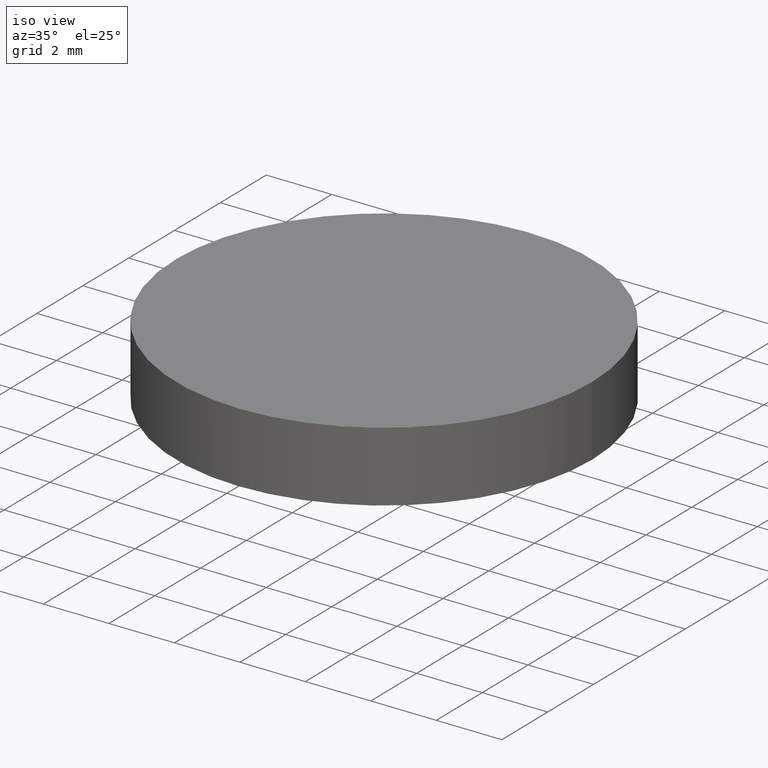
[diagram: clean part render]
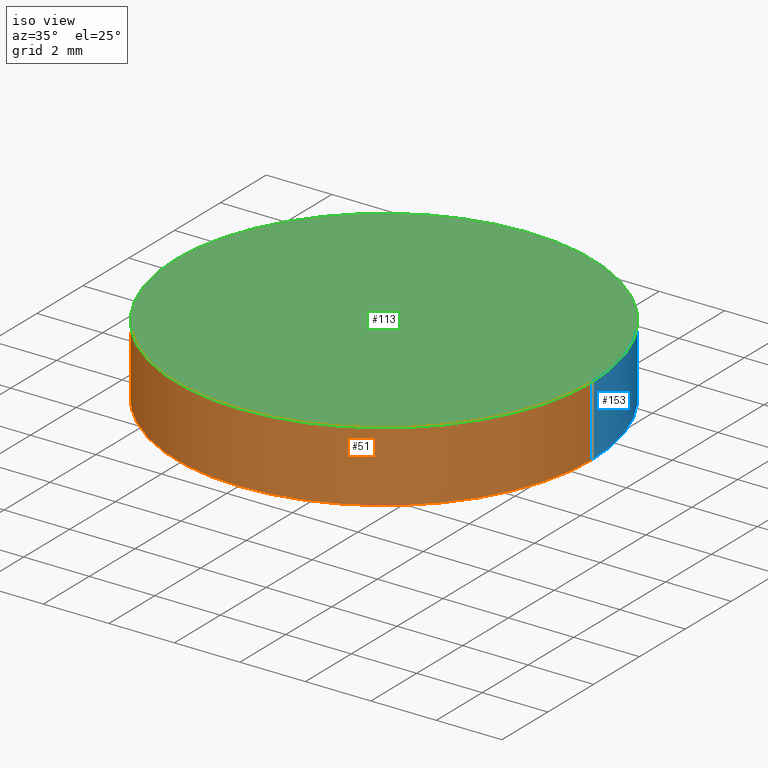
[diagram: same view with three faces highlighted in distinct colors, each labeled with its STEP entity id]
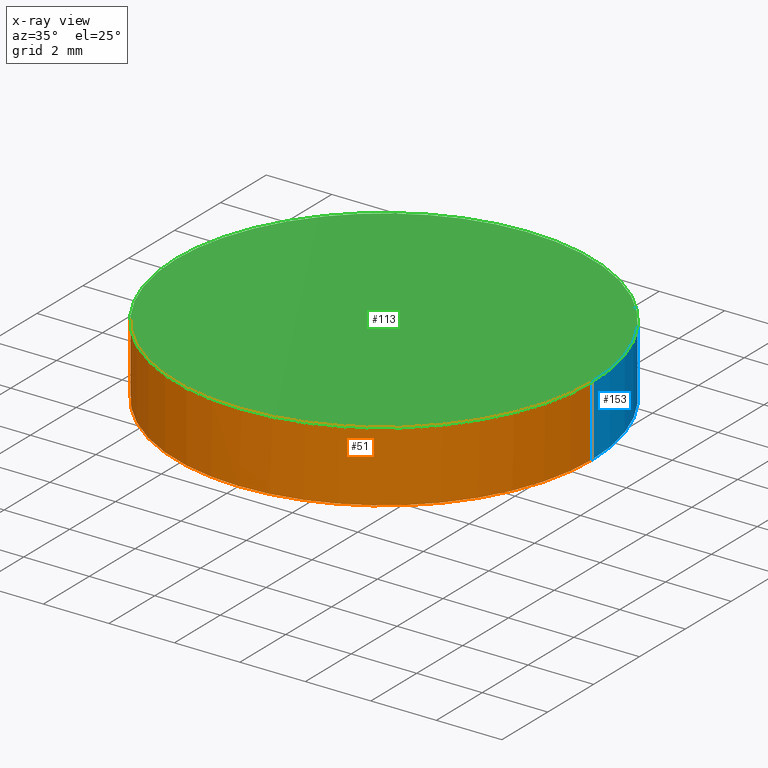
[diagram: x-ray of the same camera — body ghosted, the three highlighted faces saturated]
A machine part, iso view with three faces highlighted in distinct colors.
The next image is the same camera in x-ray (body ghosted, the three faces saturated) — at least one of them is partly hidden behind the body in this view.
Their STEP definitions:

[orange] entity #51 — the highlighted cylindrical surface (partial cylindrical patch) has radius 6.35 mm, axis along (0, 0, 1).
#1 = CARTESIAN_POINT ( 'NONE',  ( 2.498001805406600244E-16, 8.881784197001250351E-16, 1.354680573813199951 ) ) ;
#6 = ORIENTED_EDGE ( 'NONE', *, *, #28, .F. ) ;
#7 = VERTEX_POINT ( 'NONE', #125 ) ;
#12 = VECTOR ( 'NONE', #103, 1000.000000000000000 ) ;
#14 = CARTESIAN_POINT ( 'NONE',  ( 6.349999999999999645, 0.0000000000000000000, 3.500000000000000000 ) ) ;
#15 = FACE_OUTER_BOUND ( 'NONE', #156, .T. ) ;
#16 = CYLINDRICAL_SURFACE ( 'NONE', #93, 6.349999999999999645 ) ;
#18 = CARTESIAN_POINT ( 'NONE',  ( 6.349999999999999645, 0.0000000000000000000, 1.354680573813199951 ) ) ;
#21 =( BOUNDED_CURVE ( )  B_SPLINE_CURVE ( 2, ( #123, #115, #179, #59, #148 ),
 .UNSPECIFIED., .F., .T. ) 
 B_SPLINE_CURVE_WITH_KNOTS ( ( 3, 2, 3 ),
 ( 3.141592653589778461, 4.712388980384684345, 6.283185307179590673 ),
 .UNSPECIFIED. ) 
 CURVE ( )  GEOMETRIC_REPRESENTATION_ITEM ( )  RATIONAL_B_SPLINE_CURVE ( ( 1.000000000000002220, 0.7071067811865459074, 1.000000000000000000, 0.7071067811865480168, 1.000000000000000000 ) ) 
 REPRESENTATION_ITEM ( '' )  );
#27 = CARTESIAN_POINT ( 'NONE',  ( 6.349999999999999645, 1.540743955509788682E-30, 1.354680573813199951 ) ) ;
#28 = EDGE_CURVE ( 'NONE', #7, #170, #134, .T. ) ;
#31 = DIRECTION ( 'NONE',  ( 0.0000000000000000000, 0.0000000000000000000, 1.000000000000000000 ) ) ;
#36 = CARTESIAN_POINT ( 'NONE',  ( -6.349999999999999645, 7.776507174585690191E-16, 3.500000000000000000 ) ) ;
#37 = VERTEX_POINT ( 'NONE', #14 ) ;
#39 = EDGE_CURVE ( 'NONE', #117, #37, #90, .T. ) ;
#45 = CARTESIAN_POINT ( 'NONE',  ( -6.350000000000066258, -6.349999999999999645, 3.500000000000003109 ) ) ;
#49 = CARTESIAN_POINT ( 'NONE',  ( -6.349999999999999645, 7.776507174585690191E-16, 3.500000000000000000 ) ) ;
#51 = ADVANCED_FACE ( 'NONE', ( #15 ), #16, .T. ) ;
#59 = CARTESIAN_POINT ( 'NONE',  ( 6.350000000000000533, -6.350000000000000533, 1.354680573813200395 ) ) ;
#64 = ORIENTED_EDGE ( 'NONE', *, *, #39, .T. ) ;
#73 = CARTESIAN_POINT ( 'NONE',  ( 6.350000000000000533, -6.350000000000000533, 3.500000000000003109 ) ) ;
#74 = DIRECTION ( 'NONE',  ( 0.0000000000000000000, 0.0000000000000000000, 1.000000000000000000 ) ) ;
#75 = EDGE_CURVE ( 'NONE', #7, #117, #21, .T. ) ;
#78 = ORIENTED_EDGE ( 'NONE', *, *, #109, .F. ) ;
#86 = VECTOR ( 'NONE', #74, 1000.000000000000000 ) ;
#90 = LINE ( 'NONE', #27, #12 ) ;
#93 = AXIS2_PLACEMENT_3D ( 'NONE', #1, #31, #100 ) ;
#100 = DIRECTION ( 'NONE',  ( 1.000000000000000000, -1.398706172756100243E-16, 0.0000000000000000000 ) ) ;
#103 = DIRECTION ( 'NONE',  ( 0.0000000000000000000, 0.0000000000000000000, 1.000000000000000000 ) ) ;
#104 = CARTESIAN_POINT ( 'NONE',  ( -1.166476076187850077E-15, -6.349999999999999645, 3.500000000000000000 ) ) ;
#109 = EDGE_CURVE ( 'NONE', #170, #37, #171, .T. ) ;
#115 = CARTESIAN_POINT ( 'NONE',  ( -6.350000000000066258, -6.349999999999999645, 1.354680573813200395 ) ) ;
#117 = VERTEX_POINT ( 'NONE', #18 ) ;
#123 = CARTESIAN_POINT ( 'NONE',  ( -6.349999999999999645, 7.776507174585690191E-16, 1.354680573813199951 ) ) ;
#125 = CARTESIAN_POINT ( 'NONE',  ( -6.349999999999999645, 7.776507174585690191E-16, 1.354680573813199951 ) ) ;
#134 = LINE ( 'NONE', #135, #86 ) ;
#135 = CARTESIAN_POINT ( 'NONE',  ( -6.349999999999999645, 2.554007556858817709E-15, 1.354680573813199951 ) ) ;
#139 = ORIENTED_EDGE ( 'NONE', *, *, #75, .T. ) ;
#148 = CARTESIAN_POINT ( 'NONE',  ( 6.349999999999999645, 0.0000000000000000000, 1.354680573813199951 ) ) ;
#150 = CARTESIAN_POINT ( 'NONE',  ( 6.349999999999999645, 0.0000000000000000000, 3.500000000000000000 ) ) ;
#156 = EDGE_LOOP ( 'NONE', ( #6, #139, #64, #78 ) ) ;
#170 = VERTEX_POINT ( 'NONE', #36 ) ;
#171 =( BOUNDED_CURVE ( )  B_SPLINE_CURVE ( 2, ( #49, #45, #104, #73, #150 ),
 .UNSPECIFIED., .F., .F. ) 
 B_SPLINE_CURVE_WITH_KNOTS ( ( 3, 2, 3 ),
 ( 3.141592653589778461, 4.712388980384684345, 6.283185307179590673 ),
 .UNSPECIFIED. ) 
 CURVE ( )  GEOMETRIC_REPRESENTATION_ITEM ( )  RATIONAL_B_SPLINE_CURVE ( ( 1.000000000000002220, 0.7071067811865459074, 1.000000000000000000, 0.7071067811865480168, 1.000000000000000000 ) ) 
 REPRESENTATION_ITEM ( '' )  );
#179 = CARTESIAN_POINT ( 'NONE',  ( -1.166476076187850077E-15, -6.349999999999999645, 1.354680573813199951 ) ) ;

[blue] entity #153 — the highlighted cylindrical surface (partial cylindrical patch) has radius 6.35 mm, axis along (0, 0, 1).
#3 =( BOUNDED_CURVE ( )  B_SPLINE_CURVE ( 2, ( #88, #165, #133, #87, #33 ),
 .UNSPECIFIED., .F., .T. ) 
 B_SPLINE_CURVE_WITH_KNOTS ( ( 3, 2, 3 ),
 ( 0.0000000000000000000, 1.570796326794894116, 3.141592653589778905 ),
 .UNSPECIFIED. ) 
 CURVE ( )  GEOMETRIC_REPRESENTATION_ITEM ( )  RATIONAL_B_SPLINE_CURVE ( ( 1.000000000000000000, 0.7071067811865480168, 1.000000000000000000, 0.7071067811865501263, 0.9999999999999978906 ) ) 
 REPRESENTATION_ITEM ( '' )  );
#7 = VERTEX_POINT ( 'NONE', #125 ) ;
#12 = VECTOR ( 'NONE', #103, 1000.000000000000000 ) ;
#14 = CARTESIAN_POINT ( 'NONE',  ( 6.349999999999999645, 0.0000000000000000000, 3.500000000000000000 ) ) ;
#17 = EDGE_CURVE ( 'NONE', #37, #170, #3, .T. ) ;
#18 = CARTESIAN_POINT ( 'NONE',  ( 6.349999999999999645, 0.0000000000000000000, 1.354680573813199951 ) ) ;
#20 = CARTESIAN_POINT ( 'NONE',  ( -6.349999999999999645, 7.776507174585690191E-16, 1.354680573813199951 ) ) ;
#27 = CARTESIAN_POINT ( 'NONE',  ( 6.349999999999999645, 1.540743955509788682E-30, 1.354680573813199951 ) ) ;
#28 = EDGE_CURVE ( 'NONE', #7, #170, #134, .T. ) ;
#33 = CARTESIAN_POINT ( 'NONE',  ( -6.349999999999999645, 7.776507174585690191E-16, 3.500000000000000000 ) ) ;
#36 = CARTESIAN_POINT ( 'NONE',  ( -6.349999999999999645, 7.776507174585690191E-16, 3.500000000000000000 ) ) ;
#37 = VERTEX_POINT ( 'NONE', #14 ) ;
#38 = DIRECTION ( 'NONE',  ( 0.0000000000000000000, 0.0000000000000000000, 1.000000000000000000 ) ) ;
#39 = EDGE_CURVE ( 'NONE', #117, #37, #90, .T. ) ;
#62 = ORIENTED_EDGE ( 'NONE', *, *, #174, .T. ) ;
#65 = CARTESIAN_POINT ( 'NONE',  ( 6.349999999999999645, 0.0000000000000000000, 1.354680573813199951 ) ) ;
#66 = ORIENTED_EDGE ( 'NONE', *, *, #17, .F. ) ;
#71 = CYLINDRICAL_SURFACE ( 'NONE', #120, 6.349999999999999645 ) ;
#74 = DIRECTION ( 'NONE',  ( 0.0000000000000000000, 0.0000000000000000000, 1.000000000000000000 ) ) ;
#86 = VECTOR ( 'NONE', #74, 1000.000000000000000 ) ;
#87 = CARTESIAN_POINT ( 'NONE',  ( -6.349999999999934808, 6.350000000000001421, 3.500000000000002665 ) ) ;
#88 = CARTESIAN_POINT ( 'NONE',  ( 6.349999999999999645, 0.0000000000000000000, 3.500000000000000000 ) ) ;
#89 =( BOUNDED_CURVE ( )  B_SPLINE_CURVE ( 2, ( #65, #107, #92, #141, #20 ),
 .UNSPECIFIED., .F., .F. ) 
 B_SPLINE_CURVE_WITH_KNOTS ( ( 3, 2, 3 ),
 ( 0.0000000000000000000, 1.570796326794894116, 3.141592653589778905 ),
 .UNSPECIFIED. ) 
 CURVE ( )  GEOMETRIC_REPRESENTATION_ITEM ( )  RATIONAL_B_SPLINE_CURVE ( ( 1.000000000000000000, 0.7071067811865480168, 1.000000000000000000, 0.7071067811865501263, 0.9999999999999978906 ) ) 
 REPRESENTATION_ITEM ( '' )  );
#90 = LINE ( 'NONE', #27, #12 ) ;
#92 = CARTESIAN_POINT ( 'NONE',  ( 3.888253587292850026E-16, 6.349999999999999645, 1.354680573813199951 ) ) ;
#103 = DIRECTION ( 'NONE',  ( 0.0000000000000000000, 0.0000000000000000000, 1.000000000000000000 ) ) ;
#107 = CARTESIAN_POINT ( 'NONE',  ( 6.350000000000000533, 6.350000000000000533, 1.354680573813200395 ) ) ;
#116 = ORIENTED_EDGE ( 'NONE', *, *, #28, .T. ) ;
#117 = VERTEX_POINT ( 'NONE', #18 ) ;
#118 = ORIENTED_EDGE ( 'NONE', *, *, #39, .F. ) ;
#120 = AXIS2_PLACEMENT_3D ( 'NONE', #172, #38, #168 ) ;
#125 = CARTESIAN_POINT ( 'NONE',  ( -6.349999999999999645, 7.776507174585690191E-16, 1.354680573813199951 ) ) ;
#133 = CARTESIAN_POINT ( 'NONE',  ( 3.888253587292850026E-16, 6.349999999999999645, 3.500000000000000000 ) ) ;
#134 = LINE ( 'NONE', #135, #86 ) ;
#135 = CARTESIAN_POINT ( 'NONE',  ( -6.349999999999999645, 2.554007556858817709E-15, 1.354680573813199951 ) ) ;
#141 = CARTESIAN_POINT ( 'NONE',  ( -6.349999999999934808, 6.350000000000001421, 1.354680573813200617 ) ) ;
#153 = ADVANCED_FACE ( 'NONE', ( #178 ), #71, .T. ) ;
#154 = EDGE_LOOP ( 'NONE', ( #62, #116, #66, #118 ) ) ;
#165 = CARTESIAN_POINT ( 'NONE',  ( 6.350000000000000533, 6.350000000000000533, 3.500000000000003109 ) ) ;
#168 = DIRECTION ( 'NONE',  ( 1.000000000000000000, -1.398706172756100243E-16, 0.0000000000000000000 ) ) ;
#170 = VERTEX_POINT ( 'NONE', #36 ) ;
#172 = CARTESIAN_POINT ( 'NONE',  ( 2.498001805406600244E-16, 8.881784197001250351E-16, 1.354680573813199951 ) ) ;
#174 = EDGE_CURVE ( 'NONE', #117, #7, #89, .T. ) ;
#178 = FACE_OUTER_BOUND ( 'NONE', #154, .T. ) ;

[green] entity #113 — the highlighted planar face has unit normal (0, 0, 1).
#3 =( BOUNDED_CURVE ( )  B_SPLINE_CURVE ( 2, ( #88, #165, #133, #87, #33 ),
 .UNSPECIFIED., .F., .T. ) 
 B_SPLINE_CURVE_WITH_KNOTS ( ( 3, 2, 3 ),
 ( 0.0000000000000000000, 1.570796326794894116, 3.141592653589778905 ),
 .UNSPECIFIED. ) 
 CURVE ( )  GEOMETRIC_REPRESENTATION_ITEM ( )  RATIONAL_B_SPLINE_CURVE ( ( 1.000000000000000000, 0.7071067811865480168, 1.000000000000000000, 0.7071067811865501263, 0.9999999999999978906 ) ) 
 REPRESENTATION_ITEM ( '' )  );
#14 = CARTESIAN_POINT ( 'NONE',  ( 6.349999999999999645, 0.0000000000000000000, 3.500000000000000000 ) ) ;
#17 = EDGE_CURVE ( 'NONE', #37, #170, #3, .T. ) ;
#19 = EDGE_LOOP ( 'NONE', ( #52, #94 ) ) ;
#33 = CARTESIAN_POINT ( 'NONE',  ( -6.349999999999999645, 7.776507174585690191E-16, 3.500000000000000000 ) ) ;
#35 = PLANE ( 'NONE',  #149 ) ;
#36 = CARTESIAN_POINT ( 'NONE',  ( -6.349999999999999645, 7.776507174585690191E-16, 3.500000000000000000 ) ) ;
#37 = VERTEX_POINT ( 'NONE', #14 ) ;
#45 = CARTESIAN_POINT ( 'NONE',  ( -6.350000000000066258, -6.349999999999999645, 3.500000000000003109 ) ) ;
#48 = DIRECTION ( 'NONE',  ( 0.0000000000000000000, 0.0000000000000000000, 1.000000000000000000 ) ) ;
#49 = CARTESIAN_POINT ( 'NONE',  ( -6.349999999999999645, 7.776507174585690191E-16, 3.500000000000000000 ) ) ;
#52 = ORIENTED_EDGE ( 'NONE', *, *, #17, .T. ) ;
#73 = CARTESIAN_POINT ( 'NONE',  ( 6.350000000000000533, -6.350000000000000533, 3.500000000000003109 ) ) ;
#87 = CARTESIAN_POINT ( 'NONE',  ( -6.349999999999934808, 6.350000000000001421, 3.500000000000002665 ) ) ;
#88 = CARTESIAN_POINT ( 'NONE',  ( 6.349999999999999645, 0.0000000000000000000, 3.500000000000000000 ) ) ;
#94 = ORIENTED_EDGE ( 'NONE', *, *, #109, .T. ) ;
#104 = CARTESIAN_POINT ( 'NONE',  ( -1.166476076187850077E-15, -6.349999999999999645, 3.500000000000000000 ) ) ;
#109 = EDGE_CURVE ( 'NONE', #170, #37, #171, .T. ) ;
#113 = ADVANCED_FACE ( 'NONE', ( #151 ), #35, .T. ) ;
#114 = CARTESIAN_POINT ( 'NONE',  ( 0.0000000000000000000, 13.15799999999999947, 3.500000000000000000 ) ) ;
#122 = DIRECTION ( 'NONE',  ( 1.000000000000000000, 0.0000000000000000000, 0.0000000000000000000 ) ) ;
#133 = CARTESIAN_POINT ( 'NONE',  ( 3.888253587292850026E-16, 6.349999999999999645, 3.500000000000000000 ) ) ;
#149 = AXIS2_PLACEMENT_3D ( 'NONE', #114, #48, #122 ) ;
#150 = CARTESIAN_POINT ( 'NONE',  ( 6.349999999999999645, 0.0000000000000000000, 3.500000000000000000 ) ) ;
#151 = FACE_OUTER_BOUND ( 'NONE', #19, .T. ) ;
#165 = CARTESIAN_POINT ( 'NONE',  ( 6.350000000000000533, 6.350000000000000533, 3.500000000000003109 ) ) ;
#170 = VERTEX_POINT ( 'NONE', #36 ) ;
#171 =( BOUNDED_CURVE ( )  B_SPLINE_CURVE ( 2, ( #49, #45, #104, #73, #150 ),
 .UNSPECIFIED., .F., .F. ) 
 B_SPLINE_CURVE_WITH_KNOTS ( ( 3, 2, 3 ),
 ( 3.141592653589778461, 4.712388980384684345, 6.283185307179590673 ),
 .UNSPECIFIED. ) 
 CURVE ( )  GEOMETRIC_REPRESENTATION_ITEM ( )  RATIONAL_B_SPLINE_CURVE ( ( 1.000000000000002220, 0.7071067811865459074, 1.000000000000000000, 0.7071067811865480168, 1.000000000000000000 ) ) 
 REPRESENTATION_ITEM ( '' )  );